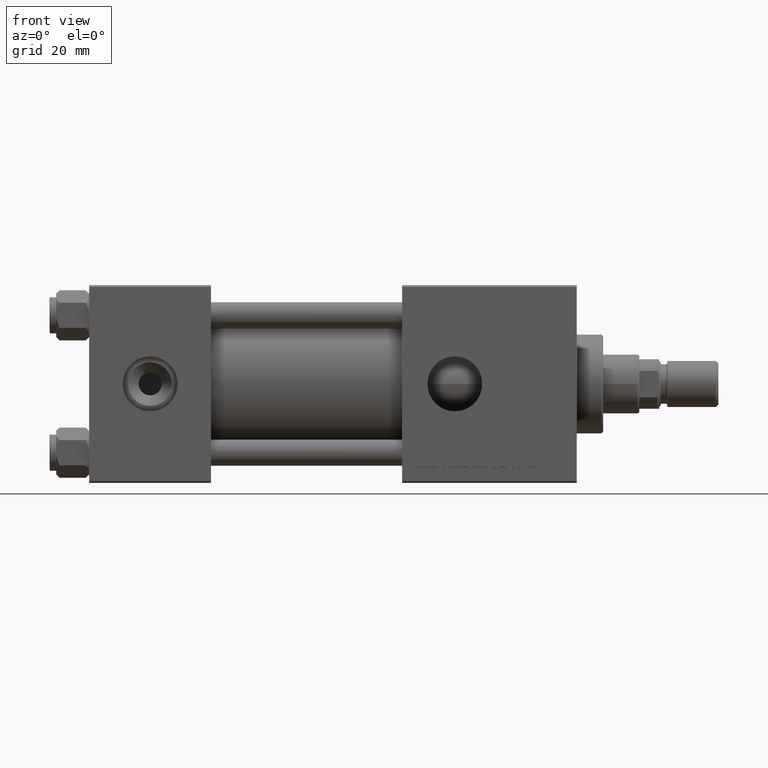
[diagram: clean part render]
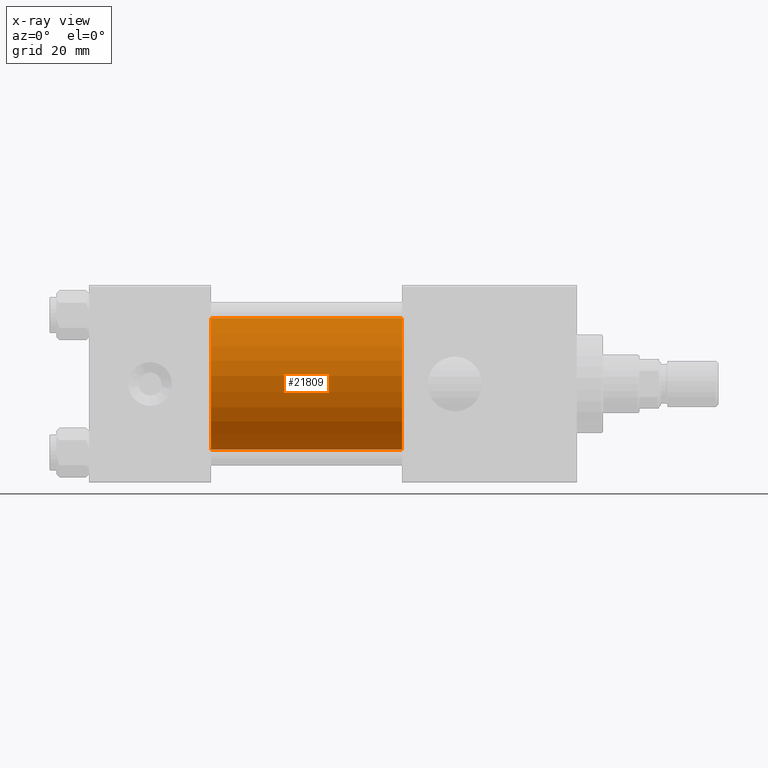
[diagram: x-ray — body ghosted, one internal face saturated and labeled with its STEP entity id]
A machine part, front view, then the same camera in x-ray: the body is ghosted and one INTERNAL B-rep face — a face not visible from any outside direction — is saturated and labeled: STEP entity #21809.
In plain terms, the highlighted cylindrical surface (partial cylindrical patch) has radius 20 mm, axis along (-1, -0, -0).
Its self-contained STEP definition (entity closure, byte-faithful):
#90 = CARTESIAN_POINT ( 'NONE',  ( 37.00000000000000000, -1.527916156705046464E-16, -20.00000000000000000 ) ) ;
#511 = ORIENTED_EDGE ( 'NONE', *, *, #36391, .F. ) ;
#1300 = ORIENTED_EDGE ( 'NONE', *, *, #35789, .T. ) ;
#4976 = EDGE_LOOP ( 'NONE', ( #21003, #1300, #21939, #511 ) ) ;
#7183 = CARTESIAN_POINT ( 'NONE',  ( 95.00000000000000000, -2.602085213965210642E-15, 20.00000000000000000 ) ) ;
#11921 = AXIS2_PLACEMENT_3D ( 'NONE', #37787, #21523, #21277 ) ;
#12511 = VERTEX_POINT ( 'NONE', #15477 ) ;
#13486 = CARTESIAN_POINT ( 'NONE',  ( 37.00000000000000000, -2.602085213965210642E-15, 20.00000000000000000 ) ) ;
#15477 = CARTESIAN_POINT ( 'NONE',  ( 95.00000000000000000, -1.527916156705046464E-16, -20.00000000000000000 ) ) ;
#17381 = CARTESIAN_POINT ( 'NONE',  ( 95.00000000000000000, -1.527916156705046464E-16, -20.00000000000000000 ) ) ;
#21003 = ORIENTED_EDGE ( 'NONE', *, *, #52125, .T. ) ;
#21277 = DIRECTION ( 'NONE',  ( 0.000000000000000000, 0.000000000000000000, -1.000000000000000000 ) ) ;
#21523 = DIRECTION ( 'NONE',  ( 1.000000000000000000, 0.000000000000000000, 0.000000000000000000 ) ) ;
#21522 = AXIS2_PLACEMENT_3D ( 'NONE', #38111, #46372, #21838 ) ;
#21809 = ADVANCED_FACE ( 'NONE', ( #39636 ), #35623, .F. ) ;
#21838 = DIRECTION ( 'NONE',  ( 0.000000000000000000, 0.000000000000000000, -1.000000000000000000 ) ) ;
#21939 = ORIENTED_EDGE ( 'NONE', *, *, #33748, .F. ) ;
#21952 = CARTESIAN_POINT ( 'NONE',  ( 95.00000000000000000, -2.602085213965210642E-15, 20.00000000000000000 ) ) ;
#21992 = VERTEX_POINT ( 'NONE', #13486 ) ;
#22741 = LINE ( 'NONE', #21952, #40972 ) ;
#22835 = DIRECTION ( 'NONE',  ( -1.000000000000000000, -0.000000000000000000, -0.000000000000000000 ) ) ;
#23095 = DIRECTION ( 'NONE',  ( 0.000000000000000000, 0.000000000000000000, 1.000000000000000000 ) ) ;
#28128 = VECTOR ( 'NONE', #29627, 1000.000000000000000 ) ;
#29627 = DIRECTION ( 'NONE',  ( -1.000000000000000000, -0.000000000000000000, -0.000000000000000000 ) ) ;
#30741 = VERTEX_POINT ( 'NONE', #90 ) ;
#33748 = EDGE_CURVE ( 'NONE', #21992, #30741, #37501, .T. ) ;
#35623 = CYLINDRICAL_SURFACE ( 'NONE', #42262, 20.00000000000000000 ) ;
#35789 = EDGE_CURVE ( 'NONE', #12511, #30741, #42687, .T. ) ;
#36391 = EDGE_CURVE ( 'NONE', #50301, #21992, #22741, .T. ) ;
#37501 = CIRCLE ( 'NONE', #11921, 20.00000000000000000 ) ;
#37787 = CARTESIAN_POINT ( 'NONE',  ( 37.00000000000000000, -2.602085213965210642E-15, 0.000000000000000000 ) ) ;
#38111 = CARTESIAN_POINT ( 'NONE',  ( 95.00000000000000000, -2.602085213965210642E-15, 0.000000000000000000 ) ) ;
#39113 = CARTESIAN_POINT ( 'NONE',  ( 95.00000000000000000, -2.602085213965210642E-15, 0.000000000000000000 ) ) ;
#39636 = FACE_OUTER_BOUND ( 'NONE', #4976, .T. ) ;
#40972 = VECTOR ( 'NONE', #50252, 1000.000000000000000 ) ;
#41103 = CIRCLE ( 'NONE', #21522, 20.00000000000000000 ) ;
#42262 = AXIS2_PLACEMENT_3D ( 'NONE', #39113, #22835, #23095 ) ;
#42687 = LINE ( 'NONE', #17381, #28128 ) ;
#46372 = DIRECTION ( 'NONE',  ( 1.000000000000000000, 0.000000000000000000, 0.000000000000000000 ) ) ;
#50252 = DIRECTION ( 'NONE',  ( -1.000000000000000000, -0.000000000000000000, -0.000000000000000000 ) ) ;
#50301 = VERTEX_POINT ( 'NONE', #7183 ) ;
#52125 = EDGE_CURVE ( 'NONE', #50301, #12511, #41103, .T. ) ;